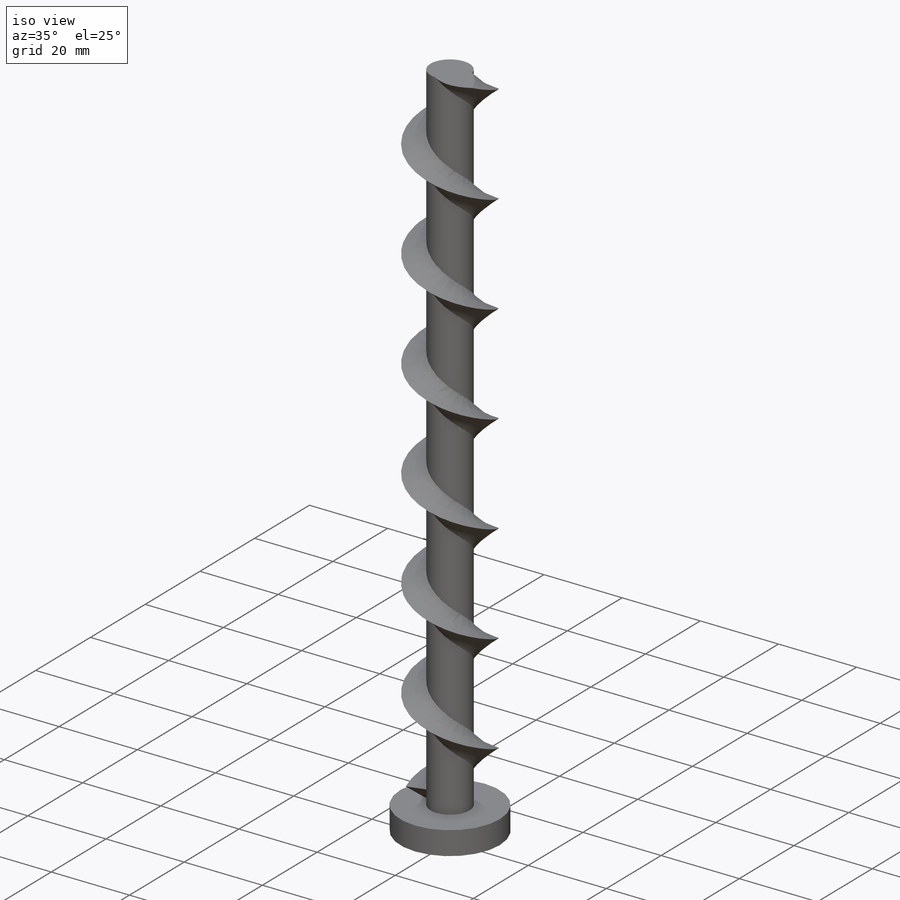
[diagram: iso view]
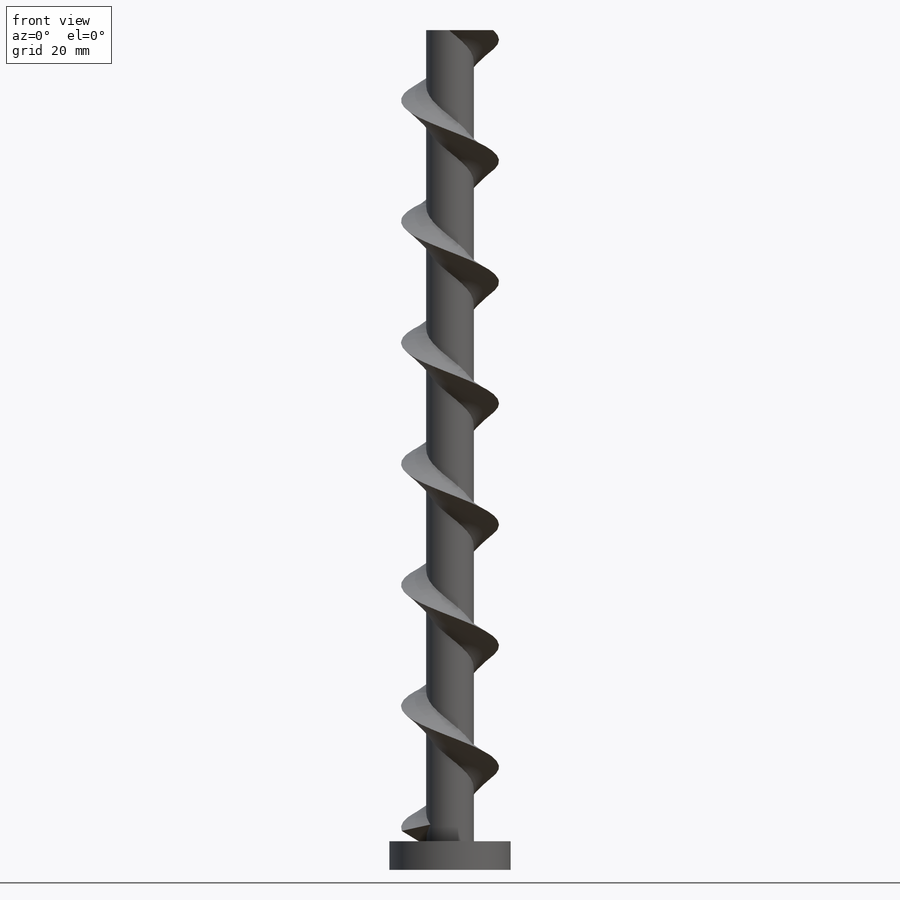
[diagram: front view]
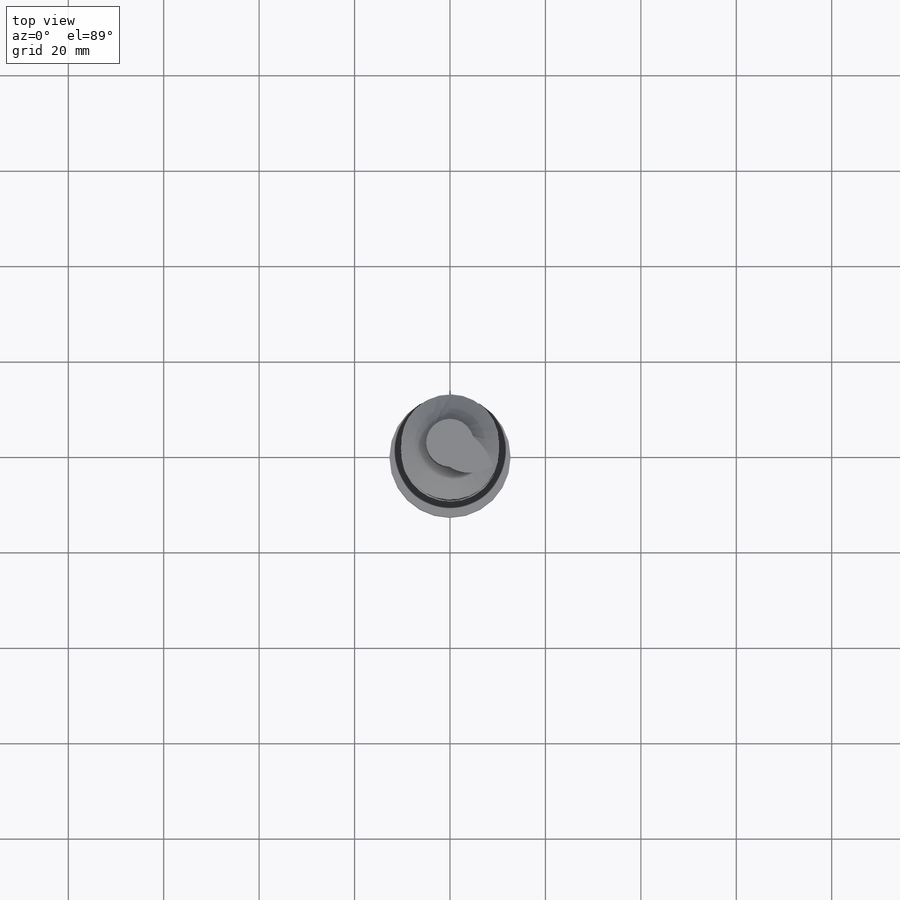
[diagram: top view]
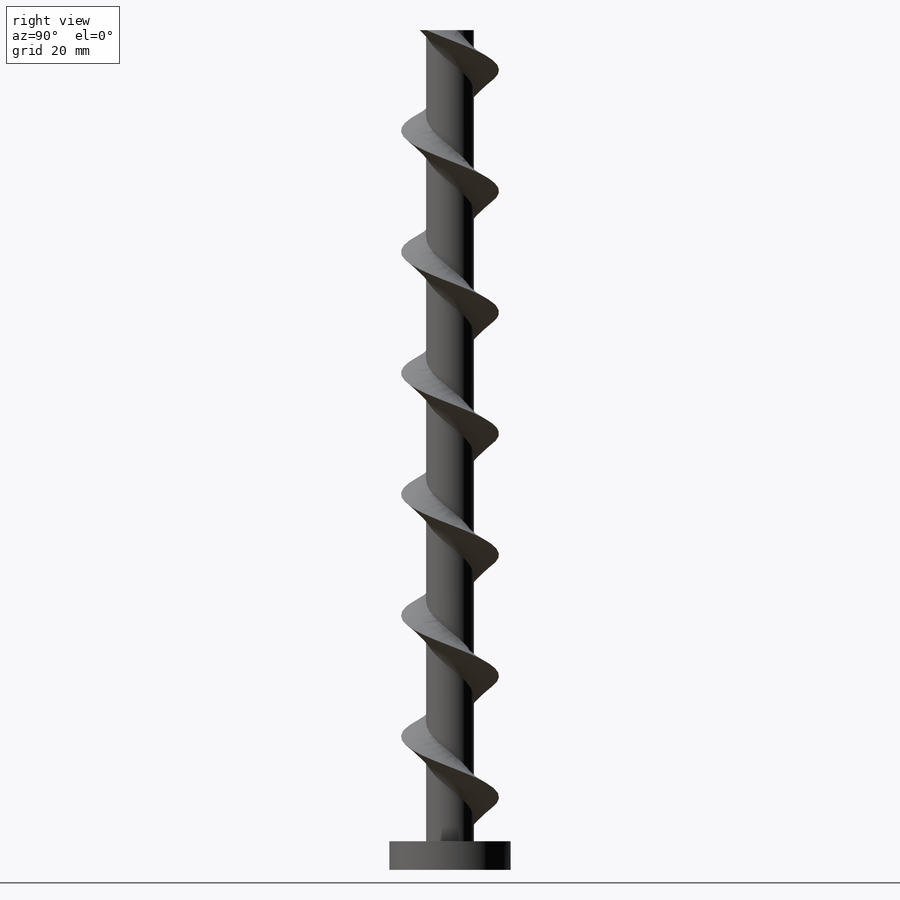
[diagram: right view]
SOLIDWORKS PART (.sldprt)
format: sldprt  version: not decoded by parser v0  size: 446,464 bytes
history: native  units: mm
features: sketch x5, extrude x2, plane x2, material x1, helix x1, sweep x1, cut_extrude x1 (+13 scaffold rows collapsed)
feature tree (26):
  scaffold x13  (default folders/planes/origin — collapsed)
  material  "Material <not specified>"
  sketch  "Sketch1"  dims[c1.D1=~25.391395mm c1.D5=25.0mm c2.D1=5.0mm c2.D2=3.0mm c2.D3=1.5mm c2.D4=2.5mm]
  extrude  "Boss-Extrude1"  Depth=6mm
  sketch  "Sketch2"  dims[D1=10.0mm]
  extrude  "Boss-Extrude2"  Depth=170mm
  sketch  "Sketch3"  dims[D1=10.0mm]
  helix  "Helix/Spiral1"  Pitch=172.72mm
  plane  "Plane1"
  sketch  "Sketch4"  dims[D1=6.2mm D2=1.5mm]
  sweep  "Sweep1"
  sketch  "Sketch5"
  cut_extrude  "Cut-Extrude1"  [1 undecoded]
  plane  "Plane2"  Offset=90mm
decode coverage: 7 of 10 modeling features carry decoded parameters
note: ~ marks probable driven/reference dimensions
note: 1 parameter value undecoded
note: suppression state not decoded; provenance and decode notes live in map.json
